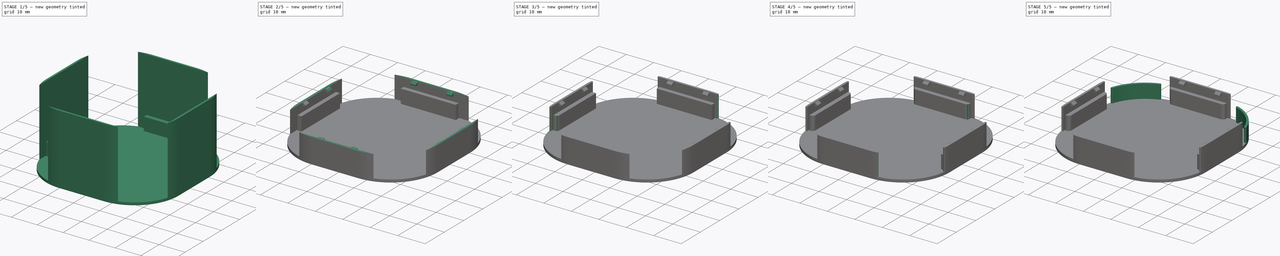
[diagram: build sequence overview — one tinted view per stage of 5, left to right]
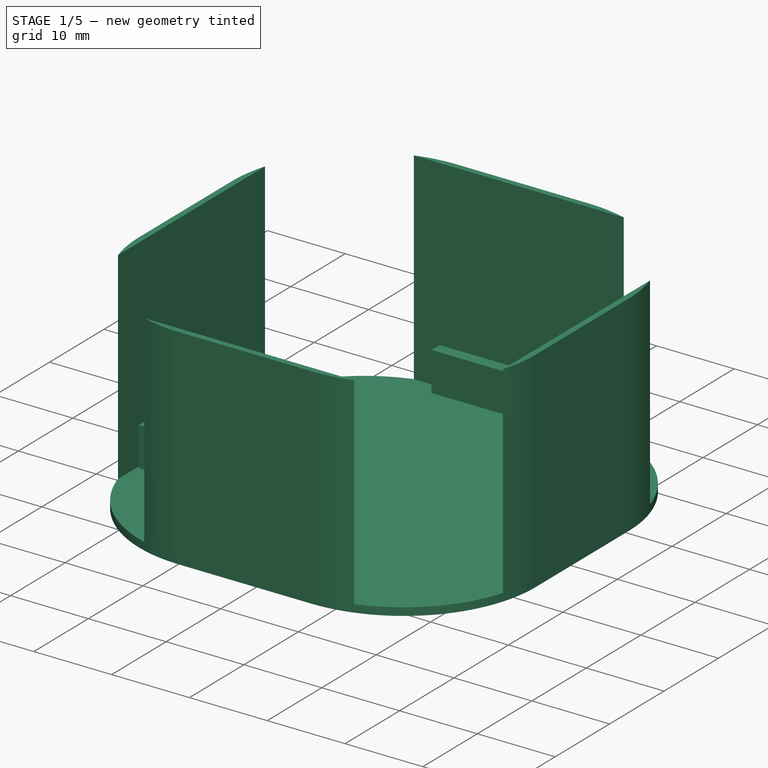
[diagram: stage 1 of 5 — iso view after this stage's code; geometry added in this stage tinted green]
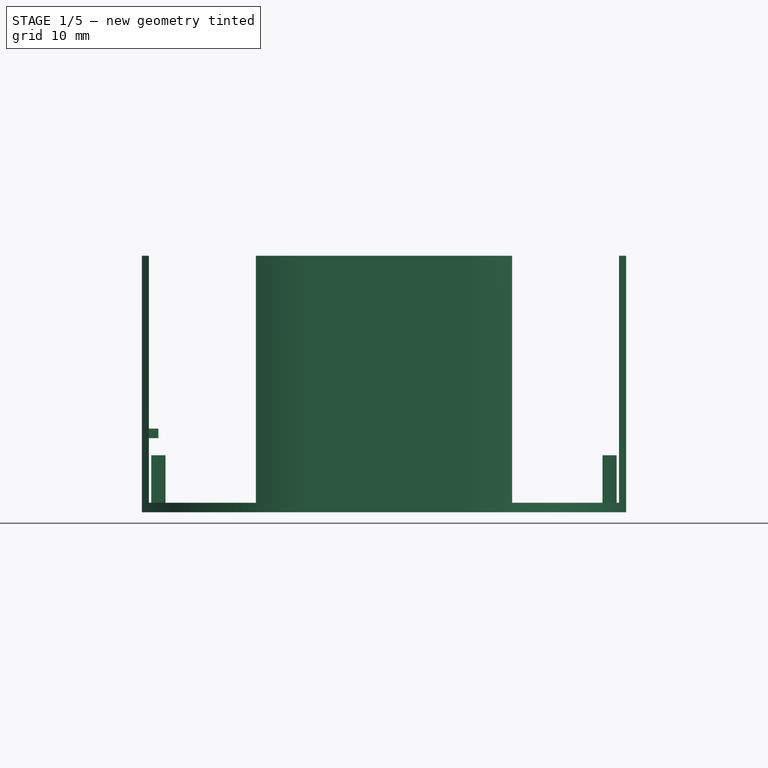
[diagram: stage 1 of 5 — front view after this stage's code; geometry added in this stage tinted green]
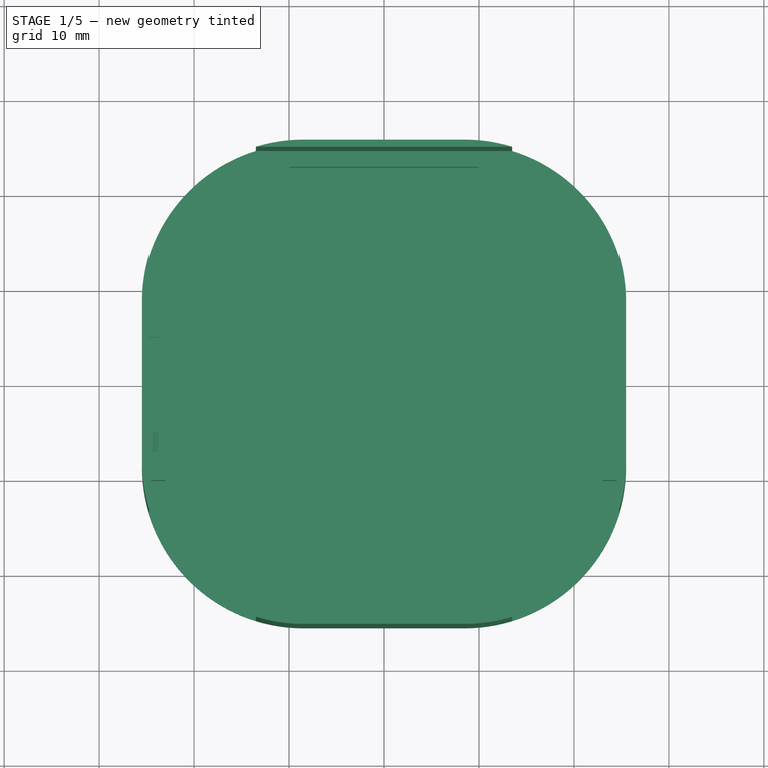
[diagram: stage 1 of 5 — top view after this stage's code; geometry added in this stage tinted green]
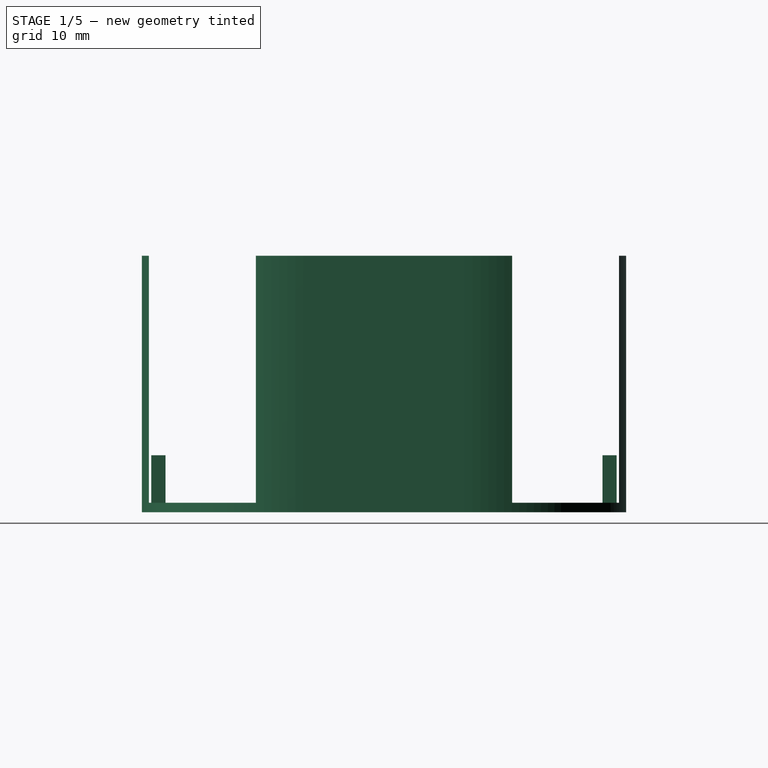
[diagram: stage 1 of 5 — right view after this stage's code; geometry added in this stage tinted green]
FCSTD DOCUMENT  (FreeCAD 0.16R6706 (Git))
Label: SmartSwitch2
License: All rights reserved
LicenseURL: http://en.wikipedia.org/wiki/All_rights_reserved
objects: PartDesign::Fillet×28, Sketcher::SketchObject×9, PartDesign::Chamfer×8, PartDesign::Pad×7, PartDesign::Pocket×2
note: 63 computed .brp shape members not serialized (recipe doc carries the construction recipe); baked Part::Feature solids carry a one-line shape summary decoded from their .brp

FEATURE [Sketcher::SketchObject] Sketch
  sketch-geometry (4):
    g0: LineSegment StartX=-25.5 StartY=25.5 StartZ=0 EndX=25.5 EndY=25.5 EndZ=0
    g1: LineSegment StartX=25.5 StartY=25.5 StartZ=0 EndX=25.5 EndY=-25.5 EndZ=0
    g2: LineSegment StartX=25.5 StartY=-25.5 StartZ=0 EndX=-25.5 EndY=-25.5 EndZ=0
    g3: LineSegment StartX=-25.5 StartY=-25.5 StartZ=0 EndX=-25.5 EndY=25.5 EndZ=0
  constraints (12):
    c: Coincident(g0,g1)
    c: Coincident(g1,g2)
    c: Coincident(g2,g3)
    c: Coincident(g3,g0)
    c: Horizontal(g0)
    c: Horizontal(g2)
    c: Vertical(g1)
    c: Vertical(g3)
    c: Symmetric(g0,g0,g-2)
    c: Symmetric(g0,g2,g-1)
    c: Equal(g0,g3)
    c: DistanceX(g0,g0) = 51
FEATURE [PartDesign::Pad] Pad
  Length = 27
  Length2 = 100
  Sketch = -> Sketch
  Type = 0
FEATURE [PartDesign::Fillet] Fillet
  Base = -> Pad [Edge5]
  Radius = 17
FEATURE [PartDesign::Fillet] Fillet001
  Base = -> Fillet [Edge15]
  Radius = 17
FEATURE [PartDesign::Fillet] Fillet002
  Base = -> Fillet001 [Edge16]
  Radius = 17
FEATURE [PartDesign::Fillet] Fillet003
  Base = -> Fillet002 [Edge15]
  Radius = 17
FEATURE [Sketcher::SketchObject] Sketch001
  Placement = pos=(0,0,27) rot=(0,0,1;0rad)
  Support = -> Fillet003 [Face10]
  sketch-geometry (4):
    g0: LineSegment StartX=-24.75 StartY=24.75 StartZ=0 EndX=24.75 EndY=24.75 EndZ=0
    g1: LineSegment StartX=24.75 StartY=24.75 StartZ=0 EndX=24.75 EndY=-24.75 EndZ=0
    g2: LineSegment StartX=24.75 StartY=-24.75 StartZ=0 EndX=-24.75 EndY=-24.75 EndZ=0
    g3: LineSegment StartX=-24.75 StartY=-24.75 StartZ=0 EndX=-24.75 EndY=24.75 EndZ=0
  constraints (12):
    c: Coincident(g0,g1)
    c: Coincident(g1,g2)
    c: Coincident(g2,g3)
    c: Coincident(g3,g0)
    c: Horizontal(g0)
    c: Horizontal(g2)
    c: Vertical(g1)
    c: Vertical(g3)
    c: Symmetric(g0,g0,g-2)
    c: Symmetric(g0,g2,g-1)
    c: Equal(g3,g0)
    c: DistanceX(g0,g0) = 49.5
FEATURE [PartDesign::Pocket] Pocket
  Length = 26
  Sketch = -> Sketch001
  Type = 0
FEATURE [Sketcher::SketchObject] Sketch002
  Placement = pos=(0,0,1) rot=(0,0,1;0rad)
  Support = -> Pocket [Face12]
  sketch-geometry (16):
    g0: LineSegment StartX=-24.5 StartY=10 StartZ=0 EndX=-23 EndY=10 EndZ=0
    g1: LineSegment StartX=-23 StartY=10 StartZ=0 EndX=-23 EndY=-10 EndZ=0
    g2: LineSegment StartX=-23 StartY=-10 StartZ=0 EndX=-24.5 EndY=-10 EndZ=0
    g3: LineSegment StartX=-24.5 StartY=-10 StartZ=0 EndX=-24.5 EndY=10 EndZ=0
    g4: LineSegment StartX=24.5 StartY=10 StartZ=0 EndX=23 EndY=10 EndZ=0
    g5: LineSegment StartX=23 StartY=10 StartZ=0 EndX=23 EndY=-10 EndZ=0
    g6: LineSegment StartX=23 StartY=-10 StartZ=0 EndX=24.5 EndY=-10 EndZ=0
    g7: LineSegment StartX=24.5 StartY=-10 StartZ=0 EndX=24.5 EndY=10 EndZ=0
    g8: LineSegment StartX=-10 StartY=24.5 StartZ=0 EndX=10 EndY=24.5 EndZ=0
    g9: LineSegment StartX=10 StartY=24.5 StartZ=0 EndX=10 EndY=23 EndZ=0
    g10: LineSegment StartX=10 StartY=23 StartZ=0 EndX=-10 EndY=23 EndZ=0
    g11: LineSegment StartX=-10 StartY=23 StartZ=0 EndX=-10 EndY=24.5 EndZ=0
    g12: LineSegment StartX=-10 StartY=-23 StartZ=0 EndX=10 EndY=-23 EndZ=0
    g13: LineSegment StartX=10 StartY=-23 StartZ=0 EndX=10 EndY=-24.5 EndZ=0
    g14: LineSegment StartX=10 StartY=-24.5 StartZ=0 EndX=-10 EndY=-24.5 EndZ=0
    g15: LineSegment StartX=-10 StartY=-24.5 StartZ=0 EndX=-10 EndY=-23 EndZ=0
  constraints (48):
    c: Coincident(g0,g1)
    c: Coincident(g1,g2)
    c: Coincident(g2,g3)
    c: Coincident(g3,g0)
    c: Horizontal(g0)
    c: Horizontal(g2)
    c: Vertical(g1)
    c: Vertical(g3)
    c: DistanceX(g0,g0) = 1.5
    c: DistanceY(g1,g1) = 20
    c: Symmetric(g0,g1,g-1)
    c: DistanceX(g1) = -23
    c: Coincident(g4,g5)
    c: Coincident(g5,g6)
    c: Coincident(g6,g7)
    c: Coincident(g7,g4)
    c: Horizontal(g4)
    c: Horizontal(g6)
    c: Vertical(g5)
    c: Vertical(g7)
    c: DistanceX(g4,g4) = 1.5
    c: DistanceY(g7,g7) = 20
    c: Symmetric(g4,g6,g-1)
    c: DistanceX(g5) = 23
    c: Coincident(g8,g9)
    c: Coincident(g9,g10)
    c: Coincident(g10,g11)
    c: Coincident(g11,g8)
    c: Horizontal(g8)
    c: Horizontal(g10)
    c: Vertical(g9)
    c: Vertical(g11)
    c: Coincident(g12,g13)
    c: Coincident(g13,g14)
    c: Coincident(g14,g15)
    c: Coincident(g15,g12)
    c: Horizontal(g12)
    c: Horizontal(g14)
    c: Vertical(g13)
    c: Vertical(g15)
    c: DistanceY(g13,g13) = 1.5
    c: DistanceY(g9,g9) = 1.5
    c: DistanceX(g8,g8) = 20
    c: DistanceX(g12,g12) = 20
    c: Symmetric(g8,g8,g-2)
    c: Symmetric(g12,g12,g-2)
    c: DistanceY(g12) = -23
    c: DistanceY(g10) = 23
FEATURE [PartDesign::Pad] Pad001
  Length = 5
  Length2 = 100
  Sketch = -> Sketch002
  Type = 0
FEATURE [Sketcher::SketchObject] Sketch003
  Placement = pos=(-24.75,0,0) rot=(0.57735,0.57735,0.57735;2.0944rad)
  Support = -> Pad001 [Face13]
  sketch-geometry (8):
    g0: LineSegment StartX=-7 StartY=8.8 StartZ=0 EndX=-5 EndY=8.8 EndZ=0
    g1: LineSegment StartX=-5 StartY=8.8 StartZ=0 EndX=-5 EndY=7.8 EndZ=0
    g2: LineSegment StartX=-5 StartY=7.8 StartZ=0 EndX=-7 EndY=7.8 EndZ=0
    g3: LineSegment StartX=-7 StartY=7.8 StartZ=0 EndX=-7 EndY=8.8 EndZ=0
    g4: LineSegment StartX=5 StartY=8.8 StartZ=0 EndX=7 EndY=8.8 EndZ=0
    g5: LineSegment StartX=7 StartY=8.8 StartZ=0 EndX=7 EndY=7.8 EndZ=0
    g6: LineSegment StartX=7 StartY=7.8 StartZ=0 EndX=5 EndY=7.8 EndZ=0
    g7: LineSegment StartX=5 StartY=7.8 StartZ=0 EndX=5 EndY=8.8 EndZ=0
  constraints (24):
    c: Coincident(g0,g1)
    c: Coincident(g1,g2)
    c: Coincident(g2,g3)
    c: Coincident(g3,g0)
    c: Horizontal(g0)
    c: Horizontal(g2)
    c: Vertical(g1)
    c: Vertical(g3)
    c: DistanceY(g3,g3) = 1
    c: DistanceX(g0,g0) = 2
    c: DistanceY(g1) = 7.8
    c: DistanceX(g1) = -5
    c: Coincident(g4,g5)
    c: Coincident(g5,g6)
    c: Coincident(g6,g7)
    c: Coincident(g7,g4)
    c: Horizontal(g4)
    c: Horizontal(g6)
    c: Vertical(g5)
    c: Vertical(g7)
    c: DistanceY(g6) = 7.8
    c: DistanceX(g6) = 5
    c: DistanceX(g4,g4) = 2
    c: DistanceY(g5,g5) = 1
FEATURE [PartDesign::Pad] Pad002
  Length = 1
  Length2 = 100
  Sketch = -> Sketch003
  Type = 0
FEATURE [PartDesign::Chamfer] Chamfer
  Base = -> Pad002 [Edge117]
  Size = 0.6
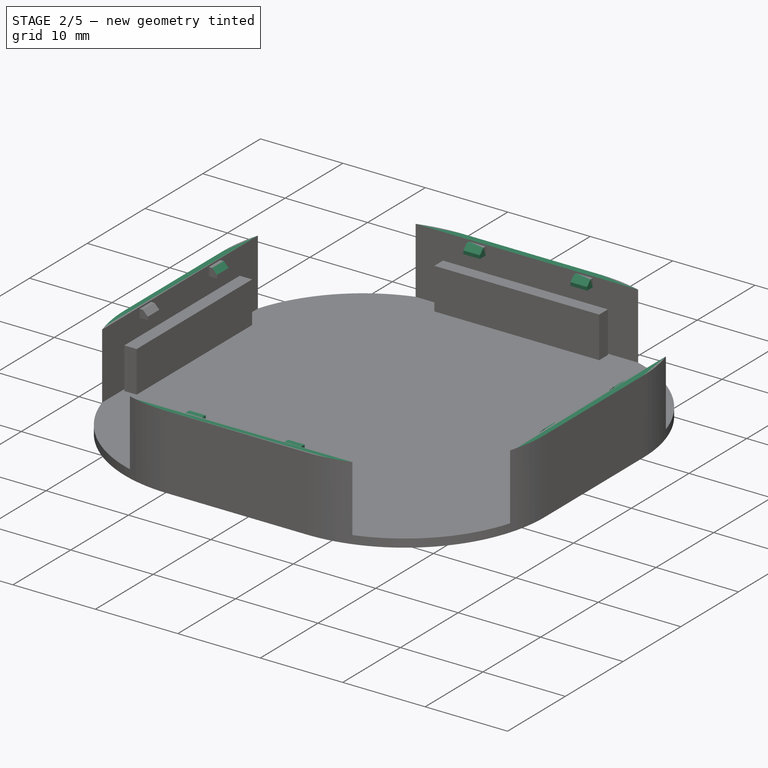
[diagram: stage 2 of 5 — iso view after this stage's code; geometry added in this stage tinted green]
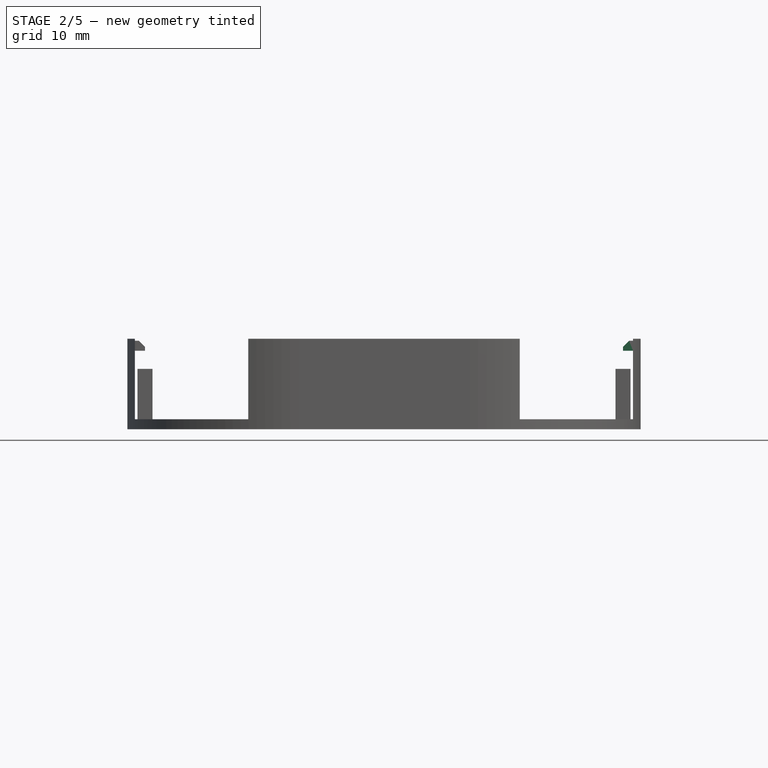
[diagram: stage 2 of 5 — front view after this stage's code; geometry added in this stage tinted green]
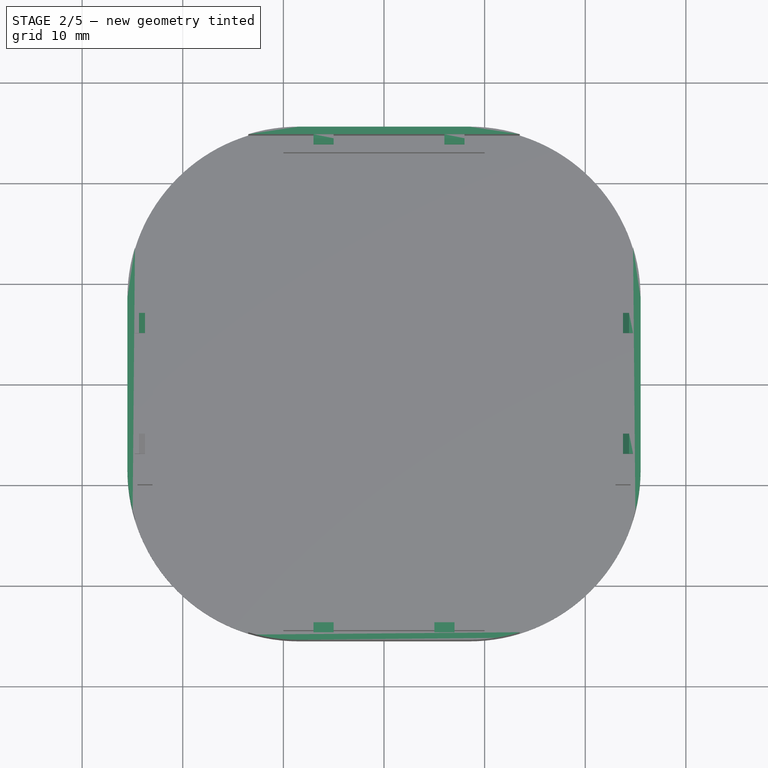
[diagram: stage 2 of 5 — top view after this stage's code; geometry added in this stage tinted green]
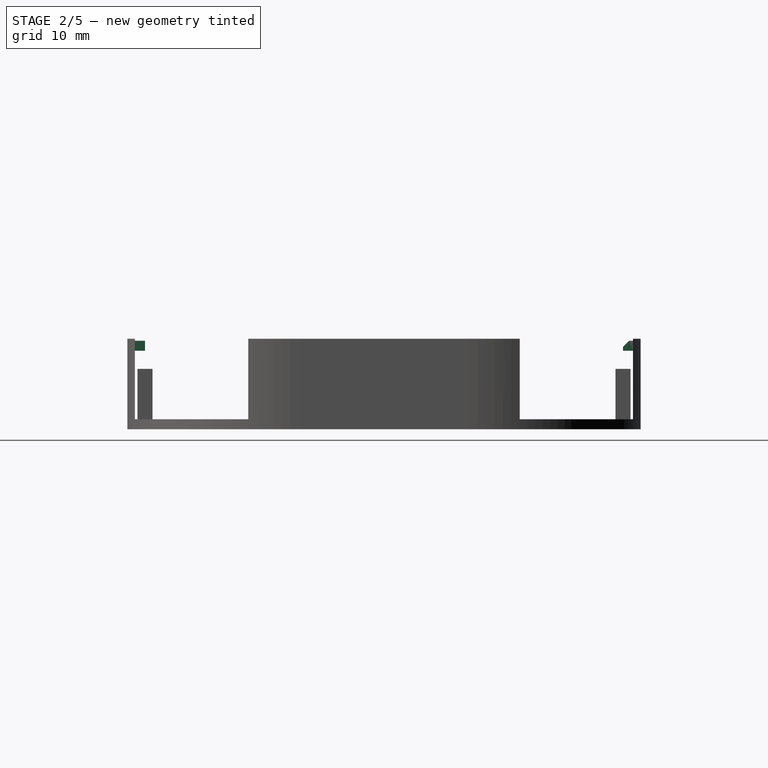
[diagram: stage 2 of 5 — right view after this stage's code; geometry added in this stage tinted green]
FEATURE [PartDesign::Chamfer] Chamfer001
  Base = -> Chamfer [Edge61]
  Size = 0.6
FEATURE [Sketcher::SketchObject] Sketch004
  Placement = pos=(0,0,27) rot=(0,0,1;0rad)
  Support = -> Chamfer001 [Face18]
  sketch-geometry (4):
    g0: LineSegment StartX=-41.1279 StartY=41.1279 StartZ=0 EndX=41.1279 EndY=41.1279 EndZ=0
    g1: LineSegment StartX=41.1279 StartY=41.1279 StartZ=0 EndX=41.1279 EndY=-41.1279 EndZ=0
    g2: LineSegment StartX=41.1279 StartY=-41.1279 StartZ=0 EndX=-41.1279 EndY=-41.1279 EndZ=0
    g3: LineSegment StartX=-41.1279 StartY=-41.1279 StartZ=0 EndX=-41.1279 EndY=41.1279 EndZ=0
  constraints (12):
    c: Coincident(g0,g1)
    c: Coincident(g1,g2)
    c: Coincident(g2,g3)
    c: Coincident(g3,g0)
    c: Horizontal(g0)
    c: Horizontal(g2)
    c: Vertical(g1)
    c: Vertical(g3)
    c: Symmetric(g0,g0,g-2)
    c: Symmetric(g0,g2,g-1)
    c: Equal(g3,g0)
    c: DistanceX(g0,g0) = 82.2559
FEATURE [PartDesign::Pocket] Pocket001
  Length = 18
  Sketch = -> Sketch004
  Type = 0
FEATURE [Sketcher::SketchObject] Sketch005
  Placement = pos=(0,24.75,0) rot=(1,0,0;1.5708rad)
  Support = -> Pocket001 [Face19]
  sketch-geometry (8):
    g0: LineSegment StartX=-7 StartY=8.8 StartZ=0 EndX=-5 EndY=8.8 EndZ=0
    g1: LineSegment StartX=-5 StartY=8.8 StartZ=0 EndX=-5 EndY=7.8 EndZ=0
    g2: LineSegment StartX=-5 StartY=7.8 StartZ=0 EndX=-7 EndY=7.8 EndZ=0
    g3: LineSegment StartX=-7 StartY=7.8 StartZ=0 EndX=-7 EndY=8.8 EndZ=0
    g4: LineSegment StartX=6 StartY=8.8 StartZ=0 EndX=8 EndY=8.8 EndZ=0
    g5: LineSegment StartX=8 StartY=8.8 StartZ=0 EndX=8 EndY=7.8 EndZ=0
    g6: LineSegment StartX=8 StartY=7.8 StartZ=0 EndX=6 EndY=7.8 EndZ=0
    g7: LineSegment StartX=6 StartY=7.8 StartZ=0 EndX=6 EndY=8.8 EndZ=0
  constraints (24):
    c: Coincident(g0,g1)
    c: Coincident(g1,g2)
    c: Coincident(g2,g3)
    c: Coincident(g3,g0)
    c: Horizontal(g0)
    c: Horizontal(g2)
    c: Vertical(g1)
    c: Vertical(g3)
    c: Coincident(g4,g5)
    c: Coincident(g5,g6)
    c: Coincident(g6,g7)
    c: Coincident(g7,g4)
    c: Horizontal(g4)
    c: Horizontal(g6)
    c: Vertical(g5)
    c: Vertical(g7)
    c: DistanceY(g3,g3) = 1
    c: DistanceX(g0,g0) = 2
    c: DistanceY(g7,g7) = 1
    c: DistanceX(g4,g4) = 2
    c: DistanceY(g1) = 7.8
    c: DistanceX(g1) = -5
    c: DistanceX(g6) = 6
    c: DistanceY(g6) = 7.8
FEATURE [PartDesign::Pad] Pad003
  Length = 1
  Length2 = 100
  Sketch = -> Sketch005
  Type = 0
FEATURE [PartDesign::Chamfer] Chamfer002
  Base = -> Pad003 [Edge135]
  Size = 0.6
FEATURE [PartDesign::Chamfer] Chamfer003
  Base = -> Chamfer002 [Edge66]
  Size = 0.6
FEATURE [Sketcher::SketchObject] Sketch006
  Placement = pos=(24.75,0,0) rot=(0.57735,-0.57735,-0.57735;2.0944rad)
  Support = -> Chamfer003 [Face19]
  sketch-geometry (8):
    g0: LineSegment StartX=-7 StartY=8.8 StartZ=0 EndX=-5 EndY=8.8 EndZ=0
    g1: LineSegment StartX=-5 StartY=8.8 StartZ=0 EndX=-5 EndY=7.8 EndZ=0
    g2: LineSegment StartX=-5 StartY=7.8 StartZ=0 EndX=-7 EndY=7.8 EndZ=0
    g3: LineSegment StartX=-7 StartY=7.8 StartZ=0 EndX=-7 EndY=8.8 EndZ=0
    g4: LineSegment StartX=5 StartY=8.8 StartZ=0 EndX=7 EndY=8.8 EndZ=0
    g5: LineSegment StartX=7 StartY=8.8 StartZ=0 EndX=7 EndY=7.8 EndZ=0
    g6: LineSegment StartX=7 StartY=7.8 StartZ=0 EndX=5 EndY=7.8 EndZ=0
    g7: LineSegment StartX=5 StartY=7.8 StartZ=0 EndX=5 EndY=8.8 EndZ=0
  constraints (24):
    c: Coincident(g0,g1)
    c: Coincident(g1,g2)
    c: Coincident(g2,g3)
    c: Coincident(g3,g0)
    c: Horizontal(g0)
    c: Horizontal(g2)
    c: Vertical(g1)
    c: Vertical(g3)
    c: Coincident(g4,g5)
    c: Coincident(g5,g6)
    c: Coincident(g6,g7)
    c: Coincident(g7,g4)
    c: Horizontal(g4)
    c: Horizontal(g6)
    c: Vertical(g5)
    c: Vertical(g7)
    c: DistanceY(g3,g3) = 1
    c: DistanceY(g7,g7) = 1
    c: DistanceX(g0,g0) = 2
    c: DistanceX(g4,g4) = 2
    c: DistanceX(g1) = -5
    c: DistanceX(g6) = 5
    c: DistanceY(g1) = 7.8
    c: DistanceY(g6) = 7.8
FEATURE [PartDesign::Pad] Pad004
  Length = 1
  Length2 = 100
  Sketch = -> Sketch006
  Type = 0
FEATURE [PartDesign::Chamfer] Chamfer004
  Base = -> Pad004 [Edge154]
  Size = 0.6
FEATURE [PartDesign::Chamfer] Chamfer005
  Base = -> Chamfer004 [Edge67]
  Size = 0.6
FEATURE [Sketcher::SketchObject] Sketch007
  Placement = pos=(0,-24.75,0) rot=(0,0.707107,0.707107;3.14159rad)
  Support = -> Chamfer005 [Face17]
  sketch-geometry (8):
    g0: LineSegment StartX=-7 StartY=8.8 StartZ=0 EndX=-5 EndY=8.8 EndZ=0
    g1: LineSegment StartX=-5 StartY=8.8 StartZ=0 EndX=-5 EndY=7.8 EndZ=0
    g2: LineSegment StartX=-5 StartY=7.8 StartZ=0 EndX=-7 EndY=7.8 EndZ=0
    g3: LineSegment StartX=-7 StartY=7.8 StartZ=0 EndX=-7 EndY=8.8 EndZ=0
    g4: LineSegment StartX=5 StartY=8.8 StartZ=0 EndX=7 EndY=8.8 EndZ=0
    g5: LineSegment StartX=7 StartY=8.8 StartZ=0 EndX=7 EndY=7.8 EndZ=0
    g6: LineSegment StartX=7 StartY=7.8 StartZ=0 EndX=5 EndY=7.8 EndZ=0
    g7: LineSegment StartX=5 StartY=7.8 StartZ=0 EndX=5 EndY=8.8 EndZ=0
  constraints (24):
    c: Coincident(g0,g1)
    c: Coincident(g1,g2)
    c: Coincident(g2,g3)
    c: Coincident(g3,g0)
    c: Horizontal(g0)
    c: Horizontal(g2)
    c: Vertical(g1)
    c: Vertical(g3)
    c: Coincident(g4,g5)
    c: Coincident(g5,g6)
    c: Coincident(g6,g7)
    c: Coincident(g7,g4)
    c: Horizontal(g4)
    c: Horizontal(g6)
    c: Vertical(g5)
    c: Vertical(g7)
    c: DistanceY(g3,g3) = 1
    c: DistanceY(g7,g7) = 1
    c: DistanceX(g0,g0) = 2
    c: DistanceX(g4,g4) = 2
    c: DistanceX(g1) = -5
    c: DistanceX(g6) = 5
    c: DistanceY(g1) = 7.8
    c: DistanceY(g6) = 7.8
FEATURE [PartDesign::Pad] Pad005
  Length = 1
  Length2 = 100
  Sketch = -> Sketch007
  Type = 0
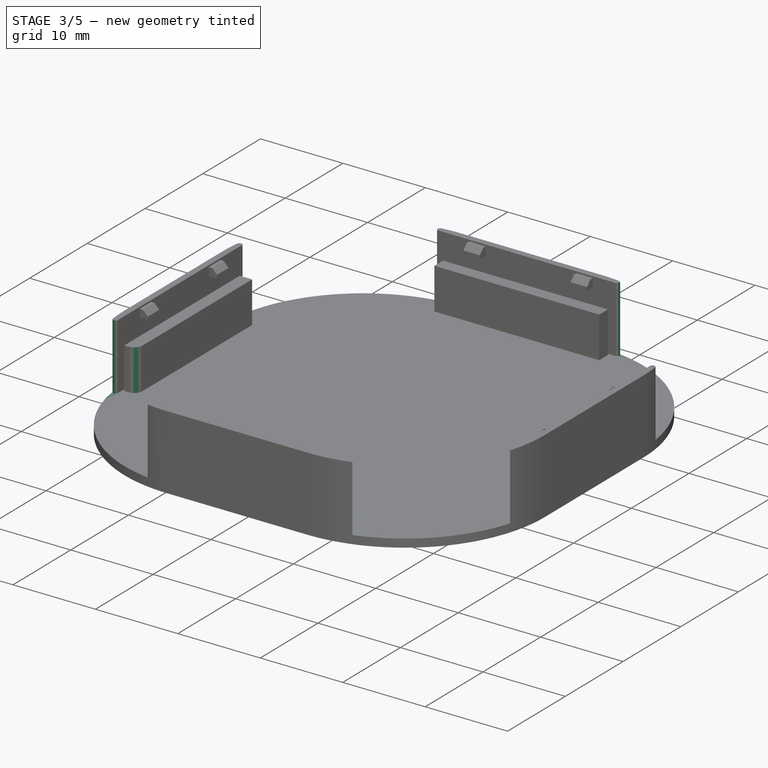
[diagram: stage 3 of 5 — iso view after this stage's code; geometry added in this stage tinted green]
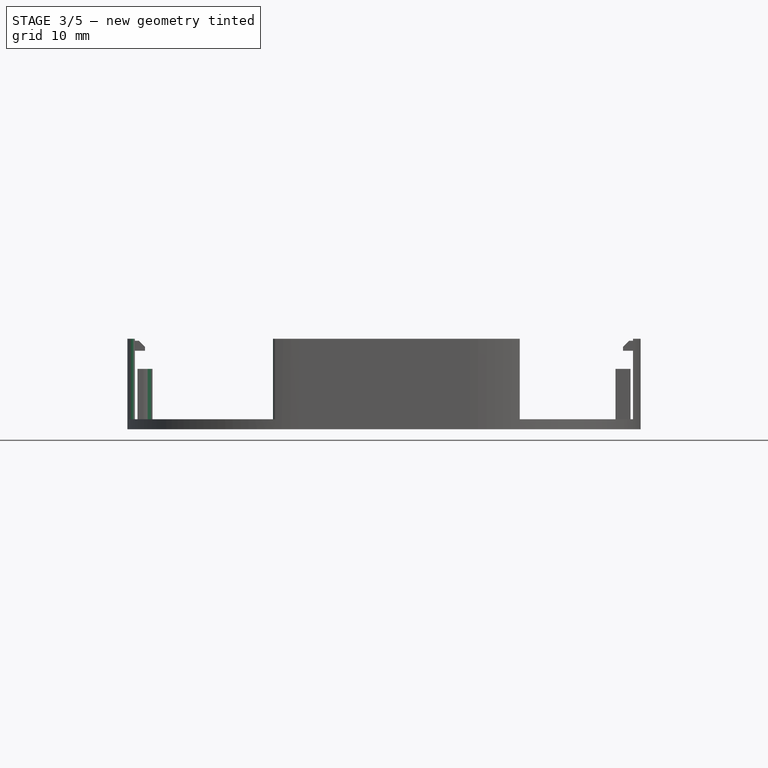
[diagram: stage 3 of 5 — front view after this stage's code; geometry added in this stage tinted green]
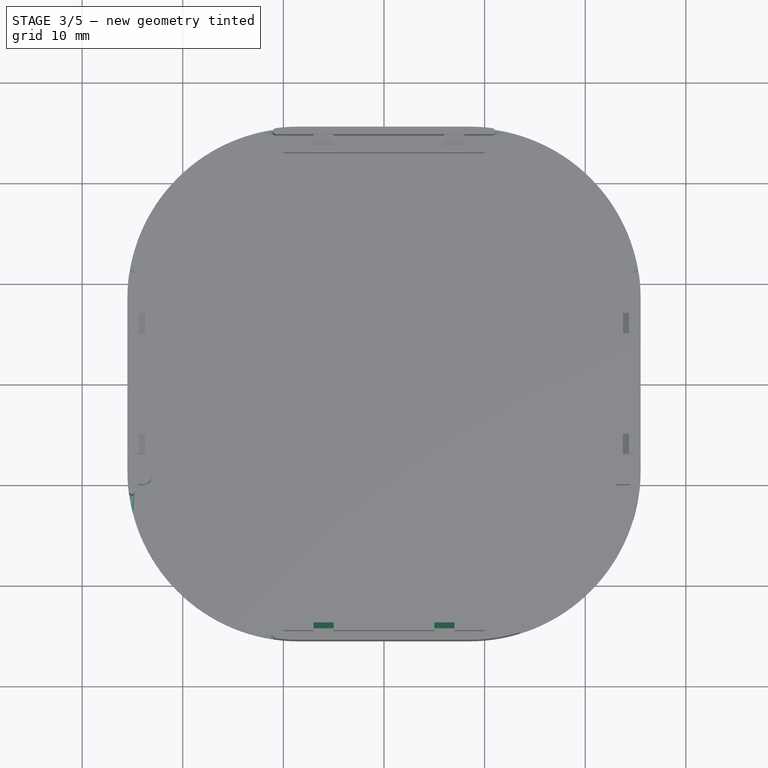
[diagram: stage 3 of 5 — top view after this stage's code; geometry added in this stage tinted green]
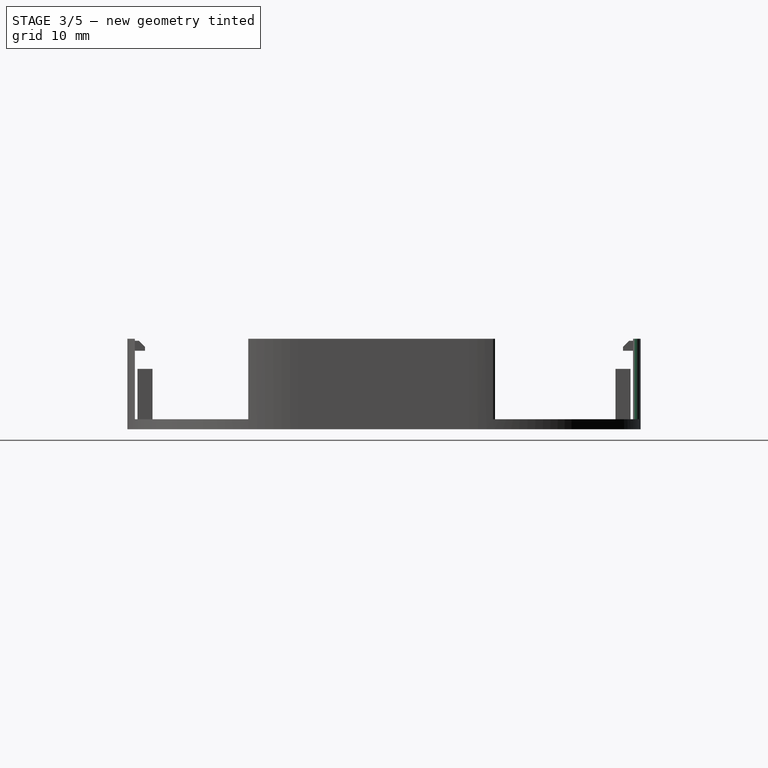
[diagram: stage 3 of 5 — right view after this stage's code; geometry added in this stage tinted green]
FEATURE [PartDesign::Chamfer] Chamfer006
  Base = -> Pad005 [Edge164]
  Size = 0.6
FEATURE [PartDesign::Chamfer] Chamfer007
  Base = -> Chamfer006 [Edge61]
  Size = 0.6
FEATURE [PartDesign::Fillet] Fillet004
  Base = -> Chamfer007 [Edge29]
  Radius = 0.3
FEATURE [PartDesign::Fillet] Fillet005
  Base = -> Fillet004 [Edge60]
  Radius = 0.3
FEATURE [PartDesign::Fillet] Fillet006
  Base = -> Fillet005 [Edge27]
  Radius = 0.3
FEATURE [PartDesign::Fillet] Fillet007
  Base = -> Fillet006 [Edge58]
  Radius = 0.3
FEATURE [PartDesign::Fillet] Fillet008
  Base = -> Fillet007 [Edge111]
  Radius = 0.3
FEATURE [PartDesign::Fillet] Fillet009
  Base = -> Fillet008 [Edge61]
  Radius = 0.3
FEATURE [PartDesign::Fillet] Fillet010
  Base = -> Fillet009 [Edge113]
  Radius = 1
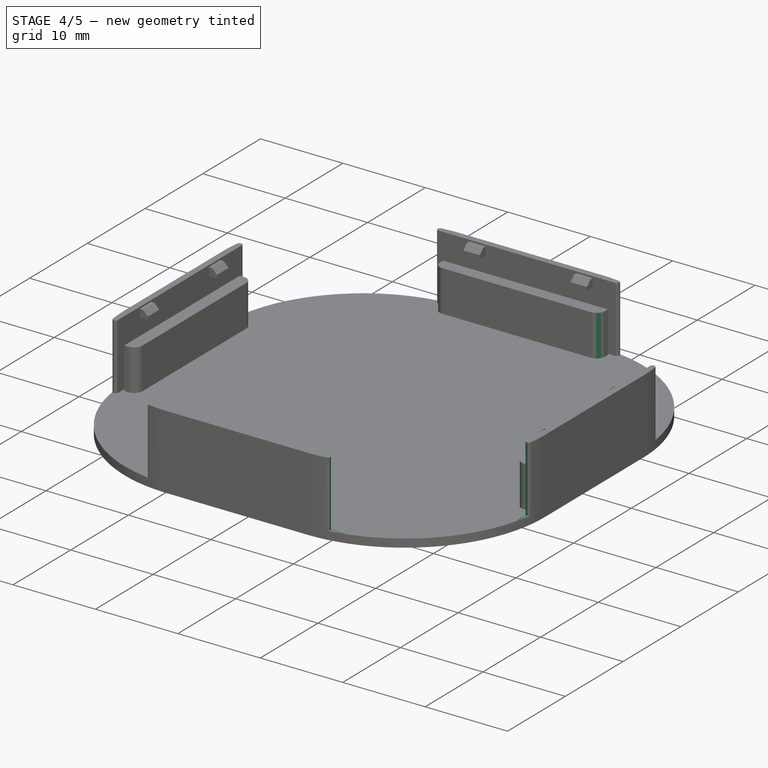
[diagram: stage 4 of 5 — iso view after this stage's code; geometry added in this stage tinted green]
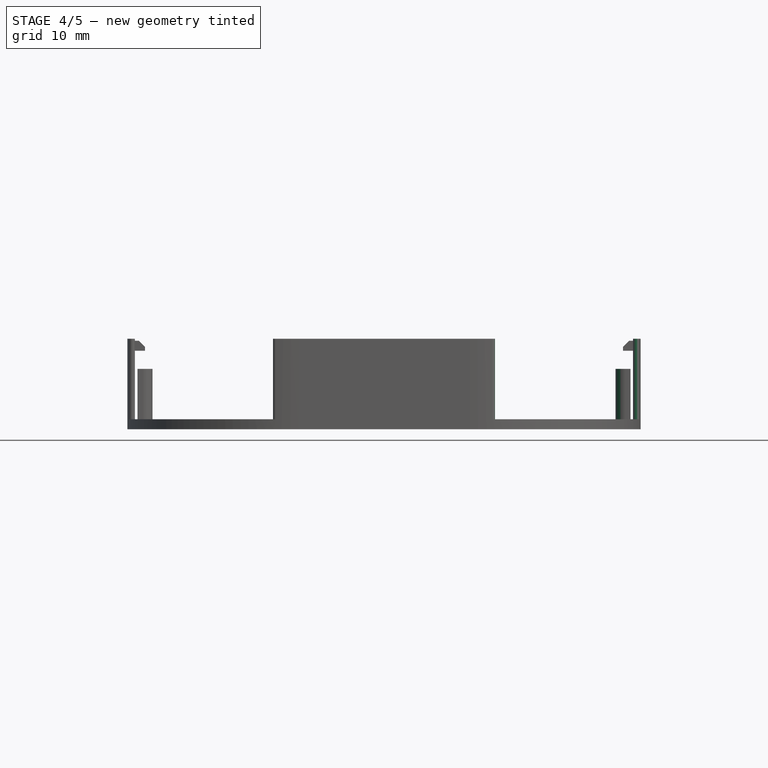
[diagram: stage 4 of 5 — front view after this stage's code; geometry added in this stage tinted green]
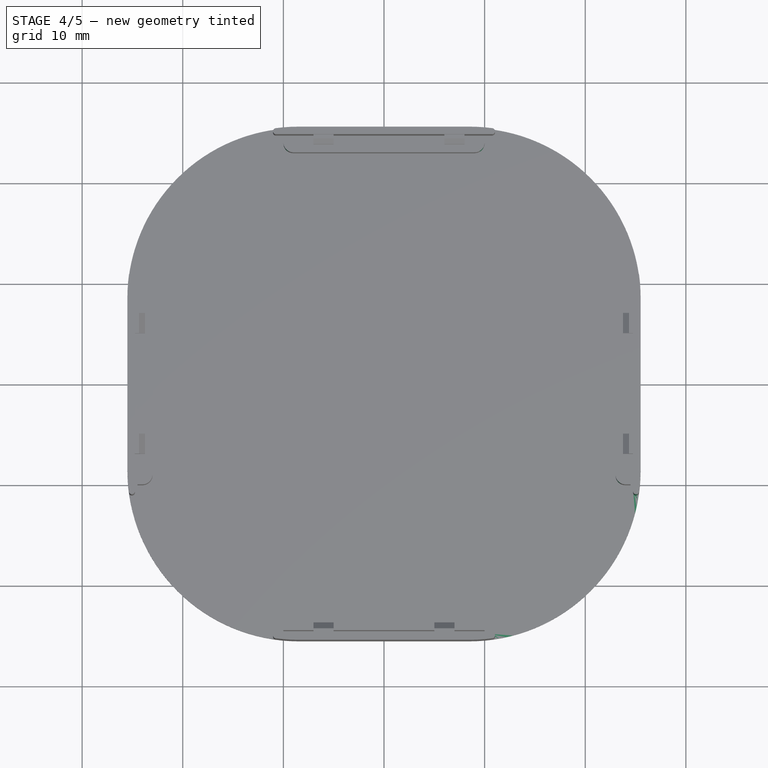
[diagram: stage 4 of 5 — top view after this stage's code; geometry added in this stage tinted green]
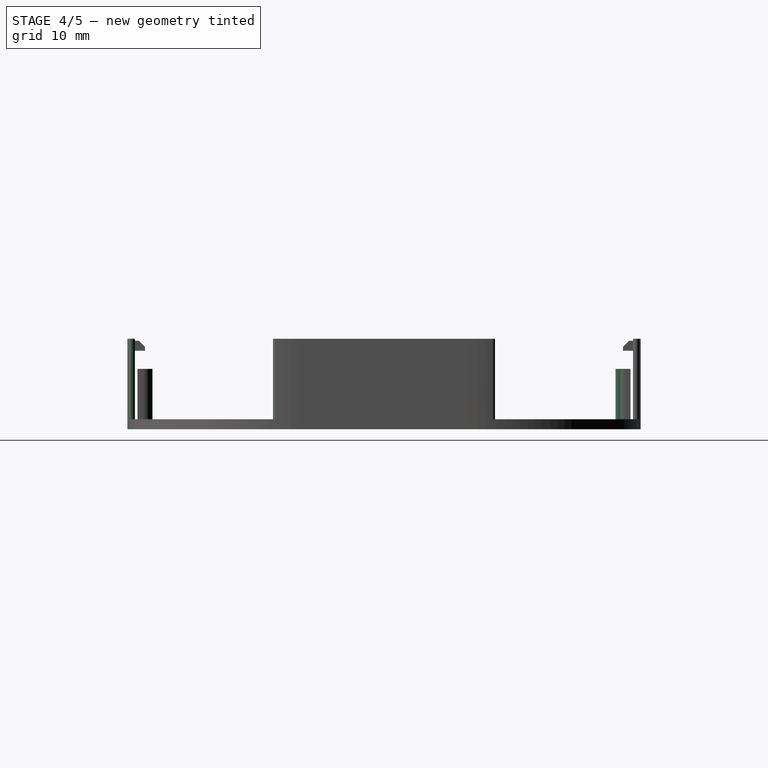
[diagram: stage 4 of 5 — right view after this stage's code; geometry added in this stage tinted green]
FEATURE [PartDesign::Fillet] Fillet011
  Base = -> Fillet010 [Edge45]
  Radius = 1
FEATURE [PartDesign::Fillet] Fillet012
  Base = -> Fillet011 [Edge132]
  Radius = 1
FEATURE [PartDesign::Fillet] Fillet013
  Base = -> Fillet012 [Edge47]
  Radius = 1
FEATURE [PartDesign::Fillet] Fillet014
  Base = -> Fillet013 [Edge145]
  Radius = 1
FEATURE [PartDesign::Fillet] Fillet015
  Base = -> Fillet014 [Edge49]
  Radius = 1
FEATURE [PartDesign::Fillet] Fillet016
  Base = -> Fillet015 [Edge160]
  Radius = 1
FEATURE [PartDesign::Fillet] Fillet017
  Base = -> Fillet016 [Edge51]
  Radius = 1
FEATURE [PartDesign::Fillet] Fillet018
  Base = -> Fillet017 [Edge95]
  Radius = 0.3
FEATURE [PartDesign::Fillet] Fillet019
  Base = -> Fillet018 [Edge66]
  Radius = 0.3
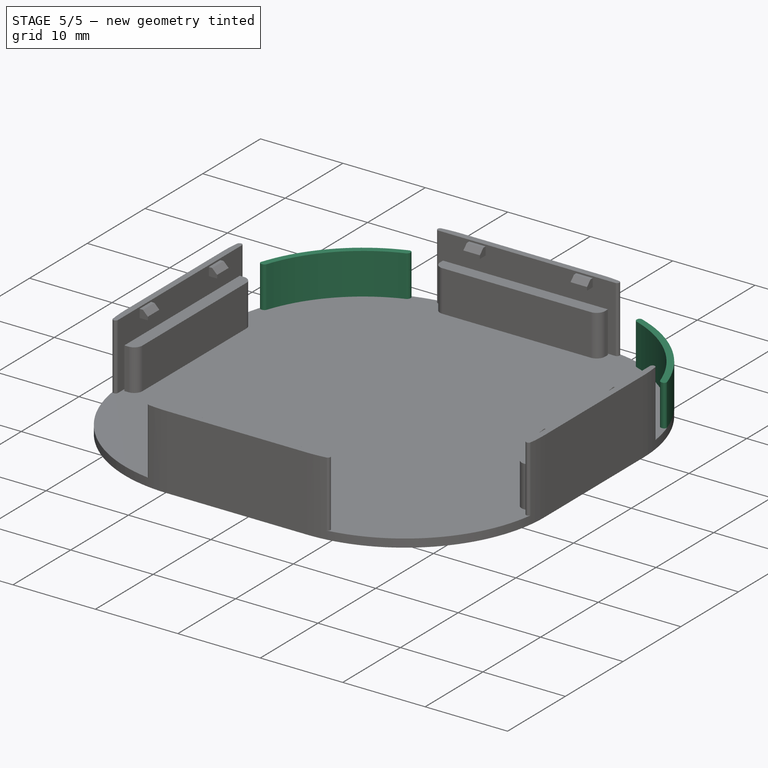
[diagram: stage 5 of 5 — iso view after this stage's code; geometry added in this stage tinted green]
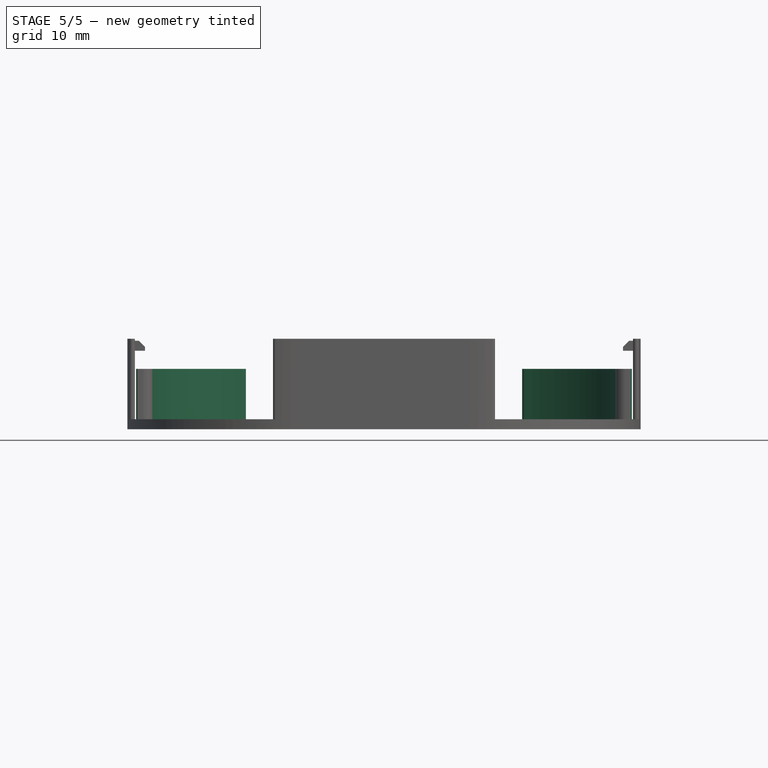
[diagram: stage 5 of 5 — front view after this stage's code; geometry added in this stage tinted green]
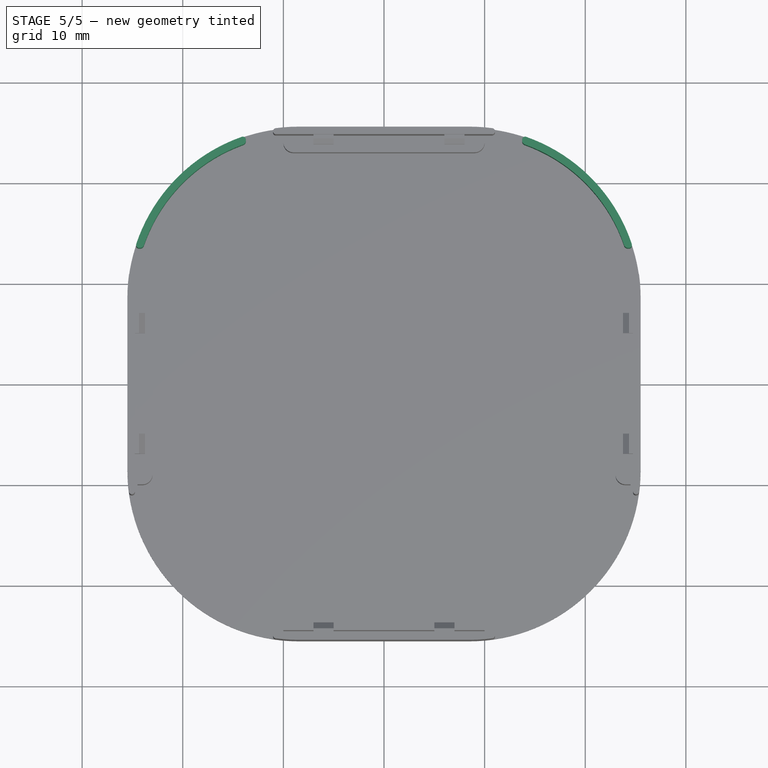
[diagram: stage 5 of 5 — top view after this stage's code; geometry added in this stage tinted green]
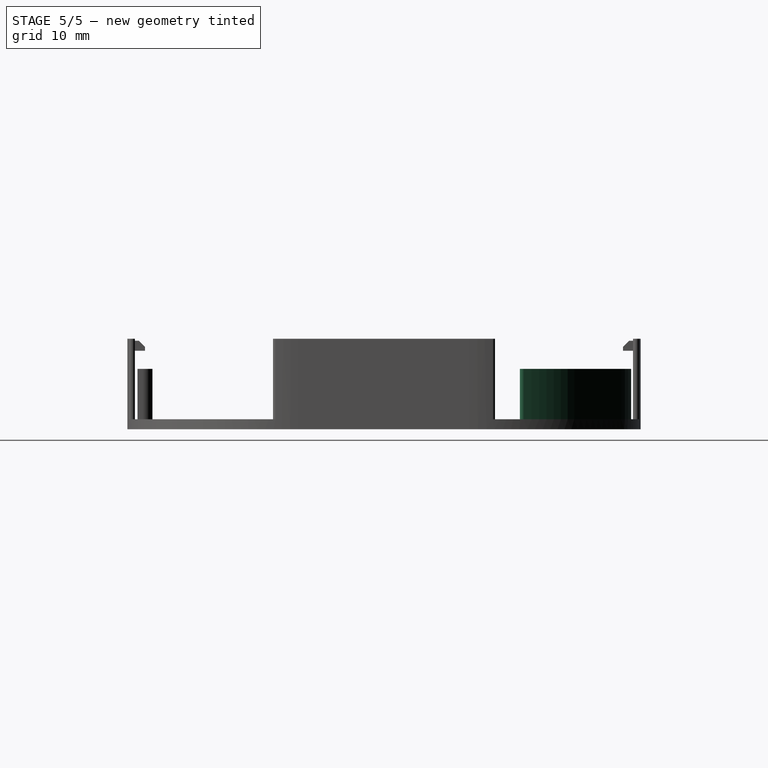
[diagram: stage 5 of 5 — right view after this stage's code; geometry added in this stage tinted green]
FEATURE [Sketcher::SketchObject] Sketch008
  Placement = pos=(0,0,1) rot=(0,0,1;0rad)
  Support = -> Fillet019 [Face1]
  sketch-geometry (8):
    g0: ArcOfCircle CenterX=-8.5 CenterY=8.5 CenterZ=0 NormalX=0 NormalY=0 NormalZ=1 Radius=17 StartAngle=1.88313 EndAngle=2.84306
    g1: ArcOfCircle CenterX=8.5 CenterY=8.5 CenterZ=0 NormalX=0 NormalY=0 NormalZ=1 Radius=17 StartAngle=0.298532 EndAngle=1.25846
    g2: LineSegment StartX=-24.7481 StartY=13.5 StartZ=0 EndX=-23.9481 EndY=13.5 EndZ=0
    g3: LineSegment StartX=-13.7238 StartY=23.8775 StartZ=0 EndX=-13.7238 EndY=24.6775 EndZ=0
    g4: ArcOfCircle CenterX=-8.49448 CenterY=8.5 CenterZ=0 NormalX=0 NormalY=0 NormalZ=1 Radius=16.2423 StartAngle=1.89859 EndAngle=2.82867
    g5: ArcOfCircle CenterX=8.49448 CenterY=8.5 CenterZ=0 NormalX=0 NormalY=0 NormalZ=1 Radius=16.2423 StartAngle=0.312919 EndAngle=1.243
    g6: LineSegment StartX=13.7238 StartY=23.8775 StartZ=0 EndX=13.7238 EndY=24.6775 EndZ=0
    g7: LineSegment StartX=23.9481 StartY=13.5 StartZ=0 EndX=24.7481 EndY=13.5 EndZ=0
  constraints (28):
    c: Radius(g0) = 17
    c: Angle(g0) = 0.959931
    c: DistanceX(g0) = -8.5
    c: DistanceY(g0) = 8.5
    c: DistanceY(g0) = 13.5
    c: Equal(g0,g1) = 17
    c: Angle(g1) = 0.959931
    c: DistanceY(g1) = 13.5
    c: DistanceY(g1) = 8.5
    c: DistanceX(g1) = 8.5
    c: Horizontal(g2)
    c: DistanceX(g2,g2) = 0.8
    c: Coincident(g2,g0)
    c: Equal(g2,g3) = 1.5
    c: Vertical(g3)
    c: Coincident(g3,g0)
    c: Coincident(g4,g2)
    c: Coincident(g4,g3)
    c: DistanceY(g4) = 8.5
    c: Vertical(g6)
    c: Coincident(g6,g1)
    c: Horizontal(g7)
    c: Equal(g2,g7) = 1.5
    c: Coincident(g7,g1)
    c: Coincident(g5,g7)
    c: DistanceY(g6,g6) = 0.8
    c: Coincident(g5,g6)
    c: DistanceY(g5) = 8.5
FEATURE [PartDesign::Pad] Pad006
  Length = 5
  Length2 = 100
  Sketch = -> Sketch008
  Type = 0
FEATURE [PartDesign::Fillet] Fillet020
  Base = -> Pad006 [Edge155]
  Radius = 0.4
FEATURE [PartDesign::Fillet] Fillet021
  Base = -> Fillet020 [Edge59]
  Radius = 0.39
FEATURE [PartDesign::Fillet] Fillet022
  Base = -> Fillet021 [Edge75]
  Radius = 0.4
FEATURE [PartDesign::Fillet] Fillet023
  Base = -> Fillet022 [Edge68]
  Radius = 0.39
FEATURE [PartDesign::Fillet] Fillet024
  Base = -> Fillet023 [Edge147]
  Radius = 0.4
FEATURE [PartDesign::Fillet] Fillet025
  Base = -> Fillet024 [Edge77]
  Radius = 0.4
FEATURE [PartDesign::Fillet] Fillet026
  Base = -> Fillet025 [Edge74]
  Radius = 0.39
FEATURE [PartDesign::Fillet] Fillet027
  Base = -> Fillet026 [Edge86]
  Radius = 0.39
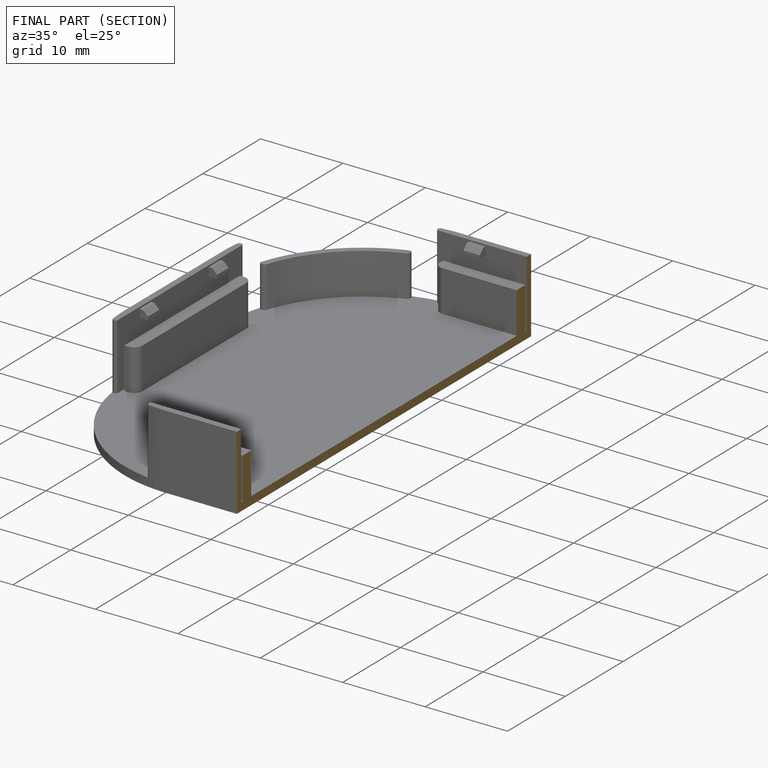
[diagram: finished part — half-section view (interior)]
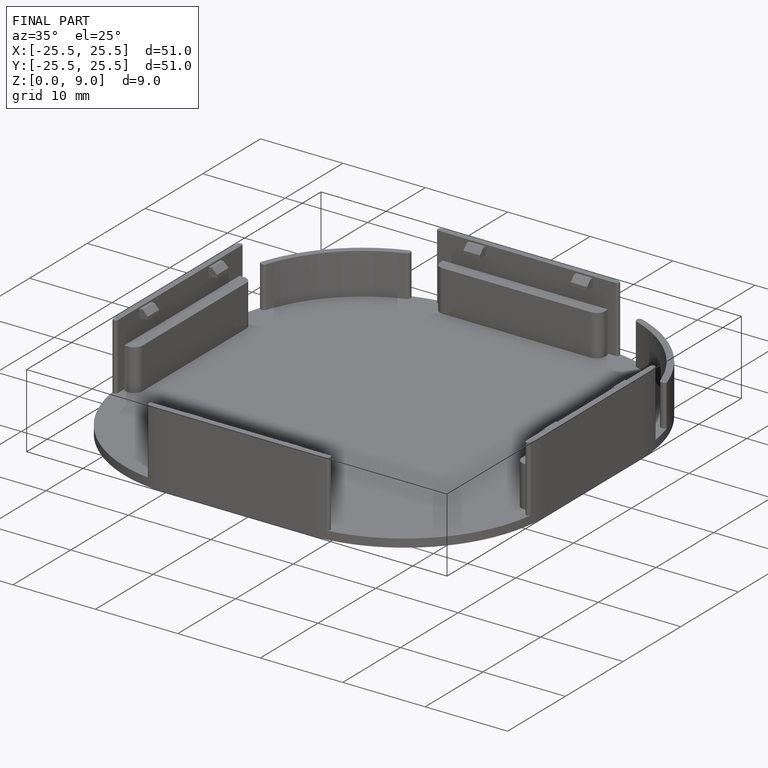
[diagram: finished part — iso view with bounding-box wireframe]
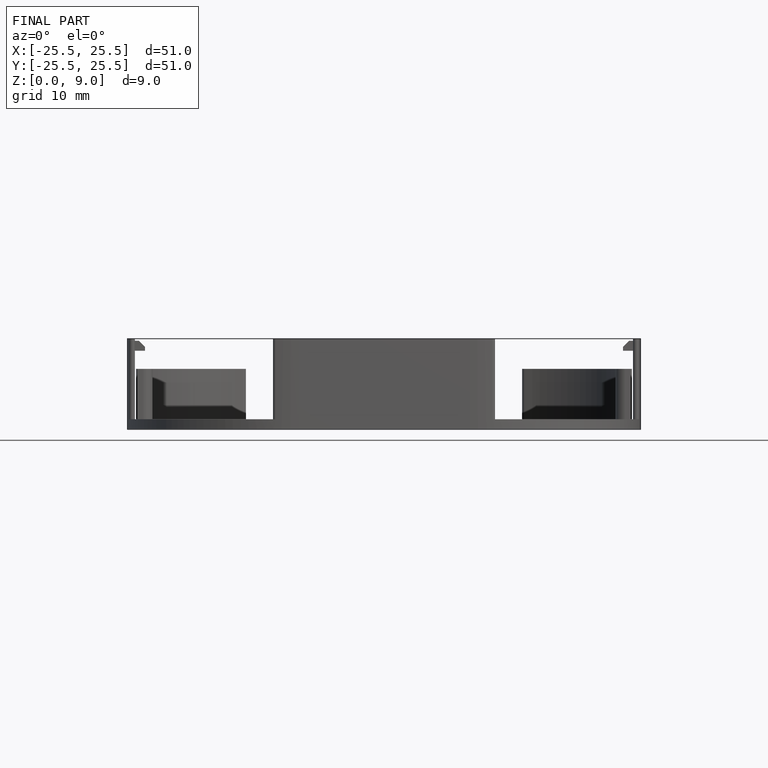
[diagram: finished part — front view with bounding-box wireframe]
